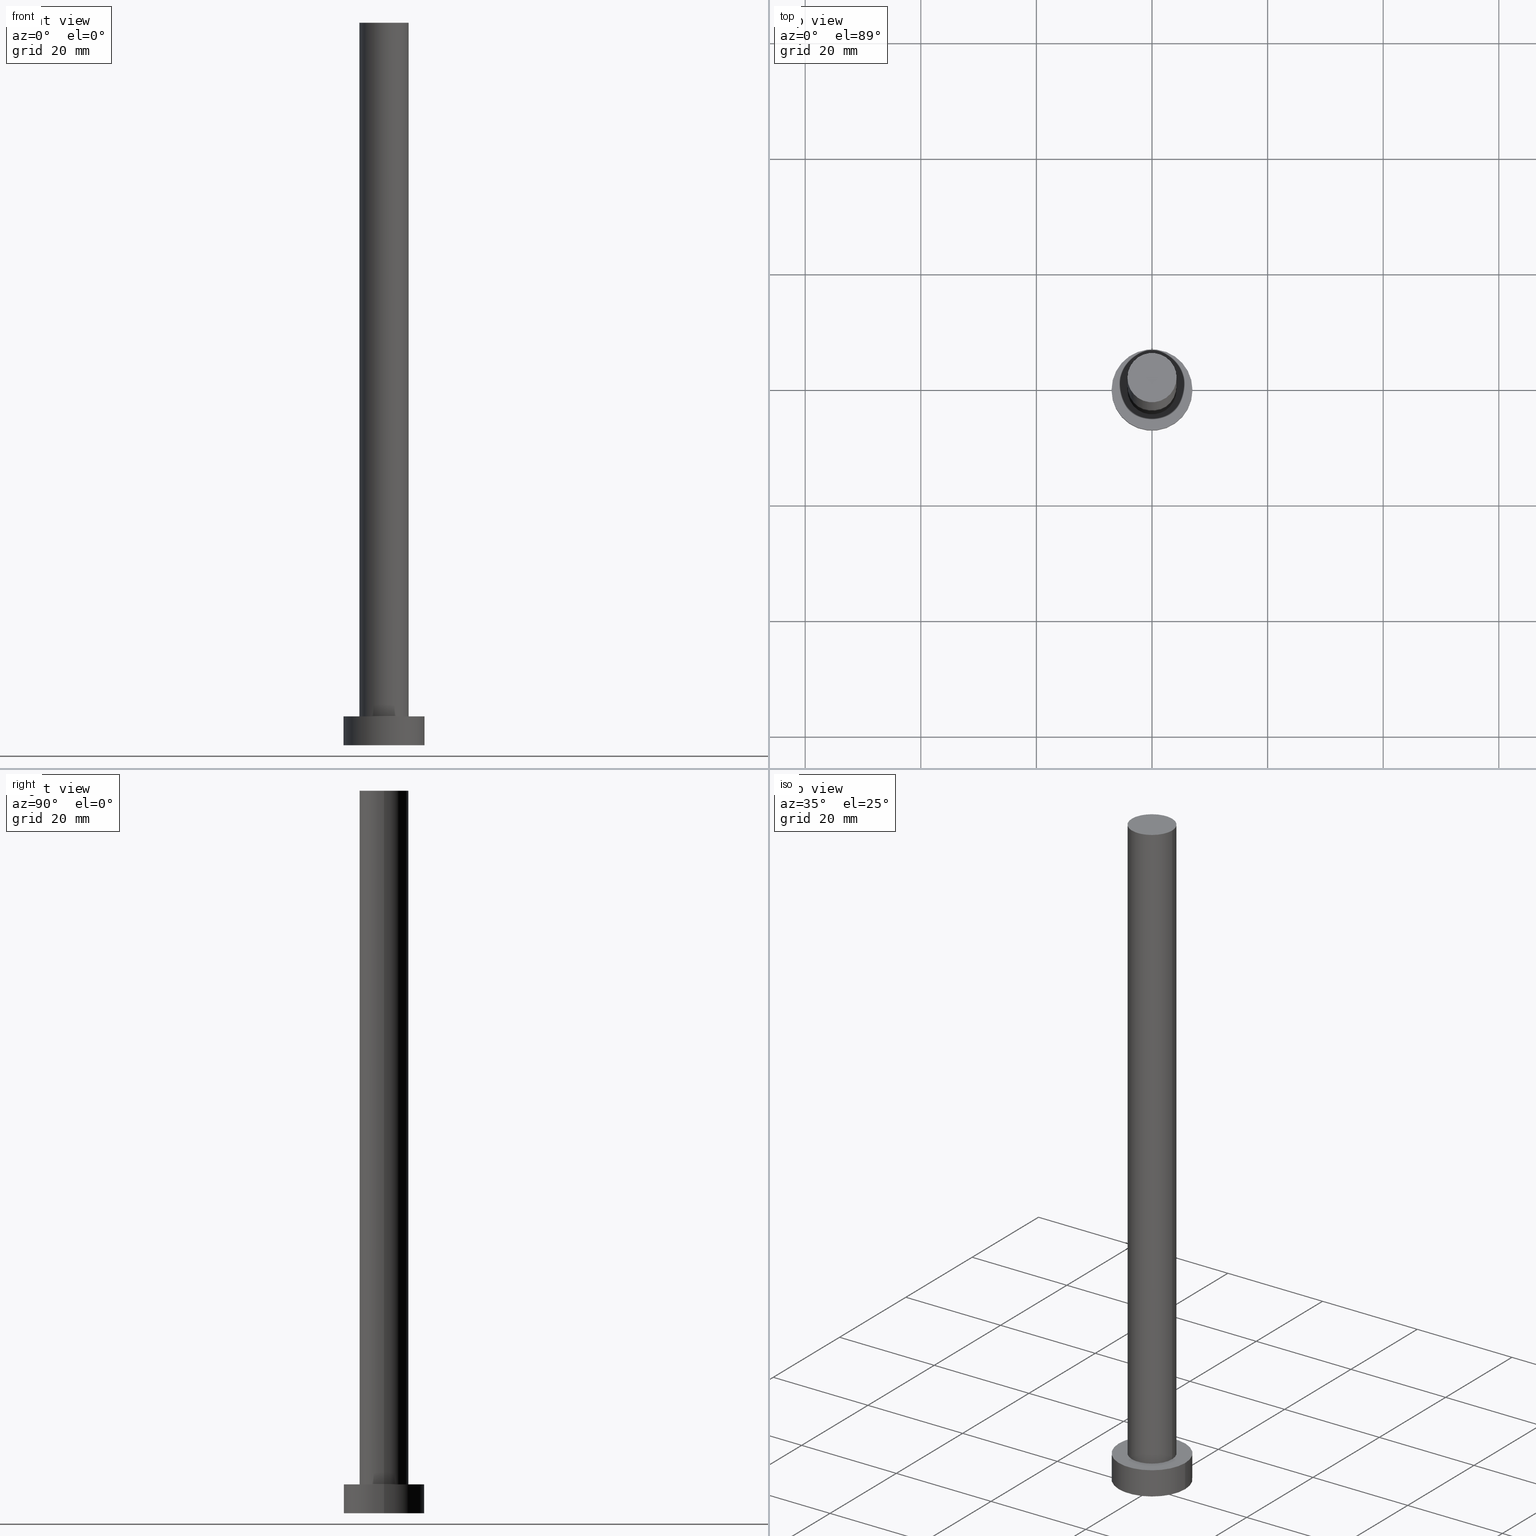
[diagram: canonical four-view strip — front | top / right | iso, engineering-drawing reading convention]
A machine part, canonical four-view strip (front | top / right | iso — engineering-drawing reading convention). The complete STEP part file that produces these views, byte-faithful:
ISO-10303-21;
HEADER;
FILE_DESCRIPTION (( 'STEP AP203' ),
    '1' );
FILE_NAME ('3d47.STEP',
    '2023-02-13T14:20:04',
    ( '' ),
    ( '' ),
    'SwSTEP 2.0',
    'SolidWorks 2019',
    '' );
FILE_SCHEMA (( 'CONFIG_CONTROL_DESIGN' ));
ENDSEC;

DATA;
#1 = DIRECTION ( 'NONE',  ( 1.000000000000000000, 0.000000000000000000, 0.000000000000000000 ) ) ;
#2 =( NAMED_UNIT ( * ) PLANE_ANGLE_UNIT ( ) SI_UNIT ( $, .RADIAN. ) );
#3 = CIRCLE ( 'NONE', #236, 7.000000000000000000 ) ;
#4 = AXIS2_PLACEMENT_3D ( 'NONE', #98, #94, #60 ) ;
#5 = EDGE_CURVE ( 'NONE', #249, #72, #208, .T. ) ;
#6 = LOCAL_TIME ( 15, 20, 4.000000000000000000, #198 ) ;
#7 = ORIENTED_EDGE ( 'NONE', *, *, #185, .F. ) ;
#8 = CALENDAR_DATE ( 2023, 13, 2 ) ;
#9 = CC_DESIGN_PERSON_AND_ORGANIZATION_ASSIGNMENT ( #102, #223, ( #231 ) ) ;
#10 = DIRECTION ( 'NONE',  ( 1.000000000000000000, 0.000000000000000000, 0.000000000000000000 ) ) ;
#11 = ORIENTED_EDGE ( 'NONE', *, *, #168, .T. ) ;
#12 = AXIS2_PLACEMENT_3D ( 'NONE', #141, #39, #255 ) ;
#13 = ORIENTED_EDGE ( 'NONE', *, *, #101, .F. ) ;
#14 = ORIENTED_EDGE ( 'NONE', *, *, #130, .F. ) ;
#15 = DIRECTION ( 'NONE',  ( 1.000000000000000000, 0.000000000000000000, 0.000000000000000000 ) ) ;
#16 = CARTESIAN_POINT ( 'NONE',  ( 0.000000000000000000, 0.000000000000000000, 125.0000000000000000 ) ) ;
#17 = APPROVAL_PERSON_ORGANIZATION ( #233, #41, #251 ) ;
#18 = DIRECTION ( 'NONE',  ( -0.000000000000000000, -0.000000000000000000, -1.000000000000000000 ) ) ;
#19 = DIRECTION ( 'NONE',  ( -1.000000000000000000, 0.000000000000000000, 0.000000000000000000 ) ) ;
#20 = VECTOR ( 'NONE', #59, 1000.000000000000000 ) ;
#21 = PERSON_AND_ORGANIZATION_ROLE ( 'creator' ) ;
#22 = ADVANCED_FACE ( 'NONE', ( #216 ), #114, .T. ) ;
#23 = VERTEX_POINT ( 'NONE', #173 ) ;
#24 = ORIENTED_EDGE ( 'NONE', *, *, #80, .T. ) ;
#25 = DATE_TIME_ROLE ( 'classification_date' ) ;
#26 = SECURITY_CLASSIFICATION ( '', '', #247 ) ;
#27 = CARTESIAN_POINT ( 'NONE',  ( 4.250000000000000000, 5.204748896376250699E-16, 125.0000000000000000 ) ) ;
#28 = CARTESIAN_POINT ( 'NONE',  ( 0.000000000000000000, 0.000000000000000000, 0.000000000000000000 ) ) ;
#29 = PERSON_AND_ORGANIZATION ( #97, #107 ) ;
#30 = ORIENTED_EDGE ( 'NONE', *, *, #36, .F. ) ;
#31 = CC_DESIGN_APPROVAL ( #143, ( #158 ) ) ;
#32 = ORIENTED_EDGE ( 'NONE', *, *, #68, .T. ) ;
#33 = DIRECTION ( 'NONE',  ( 1.000000000000000000, 0.000000000000000000, 0.000000000000000000 ) ) ;
#34 = AXIS2_PLACEMENT_3D ( 'NONE', #96, #95, #162 ) ;
#35 = CARTESIAN_POINT ( 'NONE',  ( 7.000000000000000000, 8.572527594031473190E-16, 5.000000000000000000 ) ) ;
#36 = EDGE_CURVE ( 'NONE', #67, #212, #215, .T. ) ;
#37 = CARTESIAN_POINT ( 'NONE',  ( 0.000000000000000000, 0.000000000000000000, 125.0000000000000000 ) ) ;
#38 = EDGE_CURVE ( 'NONE', #47, #175, #245, .T. ) ;
#39 = DIRECTION ( 'NONE',  ( -0.000000000000000000, -0.000000000000000000, -1.000000000000000000 ) ) ;
#40 = DIRECTION ( 'NONE',  ( -0.000000000000000000, -0.000000000000000000, -1.000000000000000000 ) ) ;
#41 = APPROVAL ( #229, 'NEUR�EN�' ) ;
#42 = APPROVAL_DATE_TIME ( #148, #143 ) ;
#43 = ADVANCED_FACE ( 'NONE', ( #71, #70 ), #136, .T. ) ;
#44 = COORDINATED_UNIVERSAL_TIME_OFFSET ( 1, 0, .AHEAD. ) ;
#45 = PERSON_AND_ORGANIZATION_ROLE ( 'creator' ) ;
#46 = DATE_AND_TIME ( #244, #153 ) ;
#47 = VERTEX_POINT ( 'NONE', #135 ) ;
#48 = AXIS2_PLACEMENT_3D ( 'NONE', #75, #18, #19 ) ;
#49 = APPROVAL_DATE_TIME ( #137, #41 ) ;
#50 = EDGE_LOOP ( 'NONE', ( #199, #155 ) ) ;
#51 = COORDINATED_UNIVERSAL_TIME_OFFSET ( 1, 0, .AHEAD. ) ;
#52 = ORIENTED_EDGE ( 'NONE', *, *, #240, .F. ) ;
#53 = PRODUCT_RELATED_PRODUCT_CATEGORY ( 'detail', '', ( #231 ) ) ;
#54 = PRODUCT_DEFINITION_SHAPE ( 'NONE', 'NONE',  #158 ) ;
#55 = DATE_AND_TIME ( #108, #62 ) ;
#56 = ORIENTED_EDGE ( 'NONE', *, *, #101, .T. ) ;
#57 = DIRECTION ( 'NONE',  ( 0.000000000000000000, 0.000000000000000000, 1.000000000000000000 ) ) ;
#58 = DIRECTION ( 'NONE',  ( 0.000000000000000000, 0.000000000000000000, 1.000000000000000000 ) ) ;
#59 = DIRECTION ( 'NONE',  ( -0.000000000000000000, -0.000000000000000000, -1.000000000000000000 ) ) ;
#60 = DIRECTION ( 'NONE',  ( -1.000000000000000000, 0.000000000000000000, 0.000000000000000000 ) ) ;
#61 = AXIS2_PLACEMENT_3D ( 'NONE', #210, #194, #10 ) ;
#62 = LOCAL_TIME ( 15, 20, 4.000000000000000000, #51 ) ;
#63 = APPROVAL_DATE_TIME ( #46, #110 ) ;
#64 = DATE_AND_TIME ( #227, #112 ) ;
#65 = EDGE_LOOP ( 'NONE', ( #52, #196 ) ) ;
#66 = CARTESIAN_POINT ( 'NONE',  ( -4.250000000000000000, 0.000000000000000000, 125.0000000000000000 ) ) ;
#67 = VERTEX_POINT ( 'NONE', #27 ) ;
#68 = EDGE_CURVE ( 'NONE', #23, #138, #214, .T. ) ;
#69 = CC_DESIGN_SECURITY_CLASSIFICATION ( #26, ( #186 ) ) ;
#70 = FACE_OUTER_BOUND ( 'NONE', #170, .T. ) ;
#71 = FACE_BOUND ( 'NONE', #65, .T. ) ;
#72 = VERTEX_POINT ( 'NONE', #88 ) ;
#73 = CARTESIAN_POINT ( 'NONE',  ( 0.000000000000000000, 0.000000000000000000, 125.0000000000000000 ) ) ;
#74 = DIRECTION ( 'NONE',  ( 1.000000000000000000, 0.000000000000000000, 0.000000000000000000 ) ) ;
#75 = CARTESIAN_POINT ( 'NONE',  ( 0.000000000000000000, 0.000000000000000000, 5.000000000000000000 ) ) ;
#76 = AXIS2_PLACEMENT_3D ( 'NONE', #87, #195, #91 ) ;
#77 = DIRECTION ( 'NONE',  ( 1.000000000000000000, 0.000000000000000000, 0.000000000000000000 ) ) ;
#78 = CC_DESIGN_PERSON_AND_ORGANIZATION_ASSIGNMENT ( #126, #21, ( #158 ) ) ;
#79 = PLANE ( 'NONE',  #34 ) ;
#80 = EDGE_CURVE ( 'NONE', #212, #175, #139, .T. ) ;
#81 = COORDINATED_UNIVERSAL_TIME_OFFSET ( 1, 0, .AHEAD. ) ;
#82 = ORIENTED_EDGE ( 'NONE', *, *, #185, .T. ) ;
#83 = APPLICATION_PROTOCOL_DEFINITION ( 'international standard', 'config_control_design', 1994, #171 ) ;
#84 =( GEOMETRIC_REPRESENTATION_CONTEXT ( 3 ) GLOBAL_UNCERTAINTY_ASSIGNED_CONTEXT ( ( #243 ) ) GLOBAL_UNIT_ASSIGNED_CONTEXT ( ( #206, #2, #150 ) ) REPRESENTATION_CONTEXT ( 'NONE', 'WORKASPACE' ) );
#85 = PERSON_AND_ORGANIZATION ( #97, #107 ) ;
#86 = DATE_TIME_ROLE ( 'creation_date' ) ;
#87 = CARTESIAN_POINT ( 'NONE',  ( 0.000000000000000000, 0.000000000000000000, 125.0000000000000000 ) ) ;
#88 = CARTESIAN_POINT ( 'NONE',  ( -7.000000000000000000, 0.000000000000000000, 0.000000000000000000 ) ) ;
#89 = APPLICATION_CONTEXT ( 'configuration controlled 3d designs of mechanical parts and assemblies' ) ;
#90 = PERSON_AND_ORGANIZATION ( #97, #107 ) ;
#91 = DIRECTION ( 'NONE',  ( 1.000000000000000000, 0.000000000000000000, -0.000000000000000000 ) ) ;
#92 = EDGE_LOOP ( 'NONE', ( #82, #159 ) ) ;
#93 = DIRECTION ( 'NONE',  ( 0.000000000000000000, 0.000000000000000000, 1.000000000000000000 ) ) ;
#94 = DIRECTION ( 'NONE',  ( -0.000000000000000000, -0.000000000000000000, -1.000000000000000000 ) ) ;
#95 = DIRECTION ( 'NONE',  ( 0.000000000000000000, 0.000000000000000000, 1.000000000000000000 ) ) ;
#96 = CARTESIAN_POINT ( 'NONE',  ( 0.000000000000000000, 0.000000000000000000, 0.000000000000000000 ) ) ;
#97 = PERSON ( 'NEUR�EN�', 'NEUR�EN�', 'NEUR�EN�', ('NEUR�EN�'), ('NEUR�EN�'), ('NEUR�EN�') ) ;
#98 = CARTESIAN_POINT ( 'NONE',  ( 0.000000000000000000, 0.000000000000000000, 125.0000000000000000 ) ) ;
#99 = ADVANCED_FACE ( 'NONE', ( #204 ), #203, .T. ) ;
#100 = APPROVAL_STATUS ( 'not_yet_approved' ) ;
#101 = EDGE_CURVE ( 'NONE', #138, #249, #124, .T. ) ;
#102 = PERSON_AND_ORGANIZATION ( #97, #107 ) ;
#103 = DIRECTION ( 'NONE',  ( 0.000000000000000000, 0.000000000000000000, 1.000000000000000000 ) ) ;
#104 = ORIENTED_EDGE ( 'NONE', *, *, #5, .T. ) ;
#105 = APPROVAL_STATUS ( 'not_yet_approved' ) ;
#106 = ORIENTED_EDGE ( 'NONE', *, *, #130, .T. ) ;
#107 = ORGANIZATION ( 'NEUR�EN�', 'NEUR�EN�', '' ) ;
#108 = CALENDAR_DATE ( 2023, 13, 2 ) ;
#109 = ORIENTED_EDGE ( 'NONE', *, *, #168, .F. ) ;
#110 = APPROVAL ( #105, 'NEUR�EN�' ) ;
#111 = ORIENTED_EDGE ( 'NONE', *, *, #38, .F. ) ;
#112 = LOCAL_TIME ( 15, 20, 4.000000000000000000, #44 ) ;
#113 = CARTESIAN_POINT ( 'NONE',  ( 4.250000000000000000, 5.204748896376250699E-16, 125.0000000000000000 ) ) ;
#114 = PLANE ( 'NONE',  #76 ) ;
#115 = CC_DESIGN_PERSON_AND_ORGANIZATION_ASSIGNMENT ( #29, #161, ( #186 ) ) ;
#116 = DIRECTION ( 'NONE',  ( -1.000000000000000000, 0.000000000000000000, 0.000000000000000000 ) ) ;
#117 = AXIS2_PLACEMENT_3D ( 'NONE', #28, #230, #252 ) ;
#118 = ADVANCED_FACE ( 'NONE', ( #205 ), #142, .T. ) ;
#119 = ADVANCED_FACE ( 'NONE', ( #237 ), #79, .F. ) ;
#120 = DIRECTION ( 'NONE',  ( 1.000000000000000000, 0.000000000000000000, 0.000000000000000000 ) ) ;
#121 = CC_DESIGN_PERSON_AND_ORGANIZATION_ASSIGNMENT ( #151, #45, ( #186 ) ) ;
#122 = LINE ( 'NONE', #217, #128 ) ;
#123 = EDGE_CURVE ( 'NONE', #72, #249, #167, .T. ) ;
#124 = LINE ( 'NONE', #35, #20 ) ;
#125 = PERSON_AND_ORGANIZATION ( #97, #107 ) ;
#126 = PERSON_AND_ORGANIZATION ( #97, #107 ) ;
#127 = DIRECTION ( 'NONE',  ( 1.000000000000000000, 0.000000000000000000, 0.000000000000000000 ) ) ;
#128 = VECTOR ( 'NONE', #40, 1000.000000000000000 ) ;
#129 = COORDINATED_UNIVERSAL_TIME_OFFSET ( 1, 0, .AHEAD. ) ;
#130 = EDGE_CURVE ( 'NONE', #138, #23, #3, .T. ) ;
#131 = ADVANCED_FACE ( 'NONE', ( #219 ), #183, .T. ) ;
#132 = AXIS2_PLACEMENT_3D ( 'NONE', #73, #253, #116 ) ;
#133 = APPROVAL_PERSON_ORGANIZATION ( #85, #110, #191 ) ;
#134 = CC_DESIGN_DATE_AND_TIME_ASSIGNMENT ( #64, #86, ( #158 ) ) ;
#135 = CARTESIAN_POINT ( 'NONE',  ( -4.250000000000000000, 0.000000000000000000, 125.0000000000000000 ) ) ;
#136 = PLANE ( 'NONE',  #225 ) ;
#137 = DATE_AND_TIME ( #8, #6 ) ;
#138 = VERTEX_POINT ( 'NONE', #164 ) ;
#139 = CIRCLE ( 'NONE', #209, 4.250000000000000000 ) ;
#140 = ORIENTED_EDGE ( 'NONE', *, *, #38, .T. ) ;
#141 = CARTESIAN_POINT ( 'NONE',  ( 0.000000000000000000, 0.000000000000000000, 5.000000000000000000 ) ) ;
#142 = CYLINDRICAL_SURFACE ( 'NONE', #48, 7.000000000000000000 ) ;
#143 = APPROVAL ( #100, 'NEUR�EN�' ) ;
#144 = CC_DESIGN_APPROVAL ( #41, ( #26 ) ) ;
#145 = CARTESIAN_POINT ( 'NONE',  ( -4.250000000000000000, 0.000000000000000000, 5.000000000000000000 ) ) ;
#146 = EDGE_CURVE ( 'NONE', #67, #47, #181, .T. ) ;
#147 = CARTESIAN_POINT ( 'NONE',  ( 0.000000000000000000, 0.000000000000000000, 5.000000000000000000 ) ) ;
#148 = DATE_AND_TIME ( #239, #222 ) ;
#149 = EDGE_LOOP ( 'NONE', ( #14, #56, #104, #109 ) ) ;
#150 =( NAMED_UNIT ( * ) SI_UNIT ( $, .STERADIAN. ) SOLID_ANGLE_UNIT ( ) );
#151 = PERSON_AND_ORGANIZATION ( #97, #107 ) ;
#152 = ORIENTED_EDGE ( 'NONE', *, *, #240, .T. ) ;
#153 = LOCAL_TIME ( 15, 20, 4.000000000000000000, #129 ) ;
#154 = DIRECTION ( 'NONE',  ( 0.000000000000000000, 0.000000000000000000, 1.000000000000000000 ) ) ;
#155 = ORIENTED_EDGE ( 'NONE', *, *, #5, .F. ) ;
#156 = PERSON_AND_ORGANIZATION_ROLE ( 'classification_officer' ) ;
#157 = CARTESIAN_POINT ( 'NONE',  ( 0.000000000000000000, 0.000000000000000000, 5.000000000000000000 ) ) ;
#158 = PRODUCT_DEFINITION ( 'NEZN�M�', '', #186, #189 ) ;
#159 = ORIENTED_EDGE ( 'NONE', *, *, #146, .T. ) ;
#160 = CIRCLE ( 'NONE', #190, 4.250000000000000000 ) ;
#161 = PERSON_AND_ORGANIZATION_ROLE ( 'design_supplier' ) ;
#162 = DIRECTION ( 'NONE',  ( 1.000000000000000000, 0.000000000000000000, -0.000000000000000000 ) ) ;
#163 = VECTOR ( 'NONE', #177, 1000.000000000000000 ) ;
#164 = CARTESIAN_POINT ( 'NONE',  ( 7.000000000000000000, 8.572527594031473190E-16, 5.000000000000000000 ) ) ;
#165 = CARTESIAN_POINT ( 'NONE',  ( 4.250000000000000000, 5.204748896376250699E-16, 5.000000000000000000 ) ) ;
#166 = CARTESIAN_POINT ( 'NONE',  ( 0.000000000000000000, 0.000000000000000000, 0.000000000000000000 ) ) ;
#167 = CIRCLE ( 'NONE', #201, 7.000000000000000000 ) ;
#168 = EDGE_CURVE ( 'NONE', #23, #72, #122, .T. ) ;
#169 = APPLICATION_PROTOCOL_DEFINITION ( 'international standard', 'config_control_design', 1994, #89 ) ;
#170 = EDGE_LOOP ( 'NONE', ( #32, #106 ) ) ;
#171 = APPLICATION_CONTEXT ( 'configuration controlled 3d designs of mechanical parts and assemblies' ) ;
#172 = ADVANCED_FACE ( 'NONE', ( #184 ), #200, .T. ) ;
#173 = CARTESIAN_POINT ( 'NONE',  ( -7.000000000000000000, 0.000000000000000000, 5.000000000000000000 ) ) ;
#174 = CLOSED_SHELL ( 'NONE', ( #99, #131, #118, #43, #119, #172, #22 ) ) ;
#175 = VERTEX_POINT ( 'NONE', #145 ) ;
#176 = MANIFOLD_SOLID_BREP ( 'P�idat vysunut�m3', #174 ) ;
#177 = DIRECTION ( 'NONE',  ( -0.000000000000000000, -0.000000000000000000, -1.000000000000000000 ) ) ;
#178 = SHAPE_DEFINITION_REPRESENTATION ( #54, #250 ) ;
#179 = ORIENTED_EDGE ( 'NONE', *, *, #123, .T. ) ;
#180 = VECTOR ( 'NONE', #248, 1000.000000000000000 ) ;
#181 = CIRCLE ( 'NONE', #242, 4.250000000000000000 ) ;
#182 = CARTESIAN_POINT ( 'NONE',  ( 7.000000000000000000, 8.572527594031473190E-16, 0.000000000000000000 ) ) ;
#183 = CYLINDRICAL_SURFACE ( 'NONE', #12, 7.000000000000000000 ) ;
#184 = FACE_OUTER_BOUND ( 'NONE', #224, .T. ) ;
#185 = EDGE_CURVE ( 'NONE', #47, #67, #160, .T. ) ;
#186 = PRODUCT_DEFINITION_FORMATION_WITH_SPECIFIED_SOURCE ( 'LIBOVOLN�', '', #231, .NOT_KNOWN. ) ;
#187 = DIRECTION ( 'NONE',  ( 0.000000000000000000, 0.000000000000000000, 1.000000000000000000 ) ) ;
#188 = APPROVAL_ROLE ( '' ) ;
#189 = DESIGN_CONTEXT ( 'detailed design', #89, 'design' ) ;
#190 = AXIS2_PLACEMENT_3D ( 'NONE', #16, #187, #1 ) ;
#191 = APPROVAL_ROLE ( '' ) ;
#192 = ORIENTED_EDGE ( 'NONE', *, *, #146, .F. ) ;
#193 = CIRCLE ( 'NONE', #202, 4.250000000000000000 ) ;
#194 = DIRECTION ( 'NONE',  ( 0.000000000000000000, 0.000000000000000000, 1.000000000000000000 ) ) ;
#195 = DIRECTION ( 'NONE',  ( 0.000000000000000000, 0.000000000000000000, 1.000000000000000000 ) ) ;
#196 = ORIENTED_EDGE ( 'NONE', *, *, #80, .F. ) ;
#197 = AXIS2_PLACEMENT_3D ( 'NONE', #166, #103, #127 ) ;
#198 = COORDINATED_UNIVERSAL_TIME_OFFSET ( 1, 0, .AHEAD. ) ;
#199 = ORIENTED_EDGE ( 'NONE', *, *, #123, .F. ) ;
#200 = CYLINDRICAL_SURFACE ( 'NONE', #4, 4.250000000000000000 ) ;
#201 = AXIS2_PLACEMENT_3D ( 'NONE', #238, #58, #33 ) ;
#202 = AXIS2_PLACEMENT_3D ( 'NONE', #221, #93, #74 ) ;
#203 = CYLINDRICAL_SURFACE ( 'NONE', #132, 4.250000000000000000 ) ;
#204 = FACE_OUTER_BOUND ( 'NONE', #232, .T. ) ;
#205 = FACE_OUTER_BOUND ( 'NONE', #234, .T. ) ;
#206 =( LENGTH_UNIT ( ) NAMED_UNIT ( * ) SI_UNIT ( .MILLI., .METRE. ) );
#207 = MECHANICAL_CONTEXT ( 'NONE', #171, 'mechanical' ) ;
#208 = CIRCLE ( 'NONE', #117, 7.000000000000000000 ) ;
#209 = AXIS2_PLACEMENT_3D ( 'NONE', #220, #218, #120 ) ;
#210 = CARTESIAN_POINT ( 'NONE',  ( 0.000000000000000000, 0.000000000000000000, 5.000000000000000000 ) ) ;
#211 = ORIENTED_EDGE ( 'NONE', *, *, #36, .T. ) ;
#212 = VERTEX_POINT ( 'NONE', #165 ) ;
#213 = CC_DESIGN_DATE_AND_TIME_ASSIGNMENT ( #55, #25, ( #26 ) ) ;
#214 = CIRCLE ( 'NONE', #61, 7.000000000000000000 ) ;
#215 = LINE ( 'NONE', #113, #163 ) ;
#216 = FACE_OUTER_BOUND ( 'NONE', #92, .T. ) ;
#217 = CARTESIAN_POINT ( 'NONE',  ( -7.000000000000000000, 0.000000000000000000, 5.000000000000000000 ) ) ;
#218 = DIRECTION ( 'NONE',  ( 0.000000000000000000, 0.000000000000000000, 1.000000000000000000 ) ) ;
#219 = FACE_OUTER_BOUND ( 'NONE', #149, .T. ) ;
#220 = CARTESIAN_POINT ( 'NONE',  ( 0.000000000000000000, 0.000000000000000000, 5.000000000000000000 ) ) ;
#221 = CARTESIAN_POINT ( 'NONE',  ( 0.000000000000000000, 0.000000000000000000, 5.000000000000000000 ) ) ;
#222 = LOCAL_TIME ( 15, 20, 4.000000000000000000, #81 ) ;
#223 = PERSON_AND_ORGANIZATION_ROLE ( 'design_owner' ) ;
#224 = EDGE_LOOP ( 'NONE', ( #30, #7, #140, #152 ) ) ;
#225 = AXIS2_PLACEMENT_3D ( 'NONE', #157, #154, #228 ) ;
#226 = APPROVAL_PERSON_ORGANIZATION ( #125, #143, #188 ) ;
#227 = CALENDAR_DATE ( 2023, 13, 2 ) ;
#228 = DIRECTION ( 'NONE',  ( 1.000000000000000000, 0.000000000000000000, -0.000000000000000000 ) ) ;
#229 = APPROVAL_STATUS ( 'not_yet_approved' ) ;
#230 = DIRECTION ( 'NONE',  ( 0.000000000000000000, 0.000000000000000000, 1.000000000000000000 ) ) ;
#231 = PRODUCT ( '3d47', '3d47', '', ( #207 ) ) ;
#232 = EDGE_LOOP ( 'NONE', ( #192, #211, #24, #111 ) ) ;
#233 = PERSON_AND_ORGANIZATION ( #97, #107 ) ;
#234 = EDGE_LOOP ( 'NONE', ( #13, #246, #11, #179 ) ) ;
#235 = DIRECTION ( 'NONE',  ( 0.000000000000000000, 0.000000000000000000, 1.000000000000000000 ) ) ;
#236 = AXIS2_PLACEMENT_3D ( 'NONE', #147, #235, #77 ) ;
#237 = FACE_OUTER_BOUND ( 'NONE', #50, .T. ) ;
#238 = CARTESIAN_POINT ( 'NONE',  ( 0.000000000000000000, 0.000000000000000000, 0.000000000000000000 ) ) ;
#239 = CALENDAR_DATE ( 2023, 13, 2 ) ;
#240 = EDGE_CURVE ( 'NONE', #175, #212, #193, .T. ) ;
#241 = CC_DESIGN_PERSON_AND_ORGANIZATION_ASSIGNMENT ( #90, #156, ( #26 ) ) ;
#242 = AXIS2_PLACEMENT_3D ( 'NONE', #37, #57, #15 ) ;
#243 = UNCERTAINTY_MEASURE_WITH_UNIT (LENGTH_MEASURE( 1.000000000000000082E-05 ), #206, 'distance_accuracy_value', 'NONE');
#244 = CALENDAR_DATE ( 2023, 13, 2 ) ;
#245 = LINE ( 'NONE', #66, #180 ) ;
#246 = ORIENTED_EDGE ( 'NONE', *, *, #68, .F. ) ;
#247 = SECURITY_CLASSIFICATION_LEVEL ( 'unclassified' ) ;
#248 = DIRECTION ( 'NONE',  ( -0.000000000000000000, -0.000000000000000000, -1.000000000000000000 ) ) ;
#249 = VERTEX_POINT ( 'NONE', #182 ) ;
#250 = ADVANCED_BREP_SHAPE_REPRESENTATION ( '3d47', ( #176, #197 ), #84 ) ;
#251 = APPROVAL_ROLE ( '' ) ;
#252 = DIRECTION ( 'NONE',  ( 1.000000000000000000, 0.000000000000000000, 0.000000000000000000 ) ) ;
#253 = DIRECTION ( 'NONE',  ( -0.000000000000000000, -0.000000000000000000, -1.000000000000000000 ) ) ;
#254 = CC_DESIGN_APPROVAL ( #110, ( #186 ) ) ;
#255 = DIRECTION ( 'NONE',  ( -1.000000000000000000, 0.000000000000000000, 0.000000000000000000 ) ) ;
ENDSEC;
END-ISO-10303-21;
